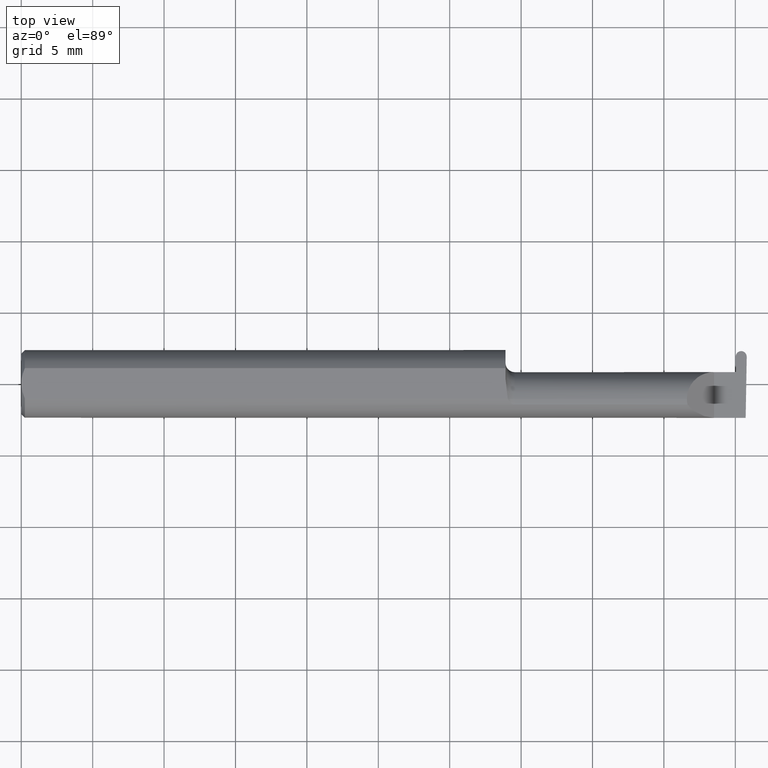
[diagram: clean part render]
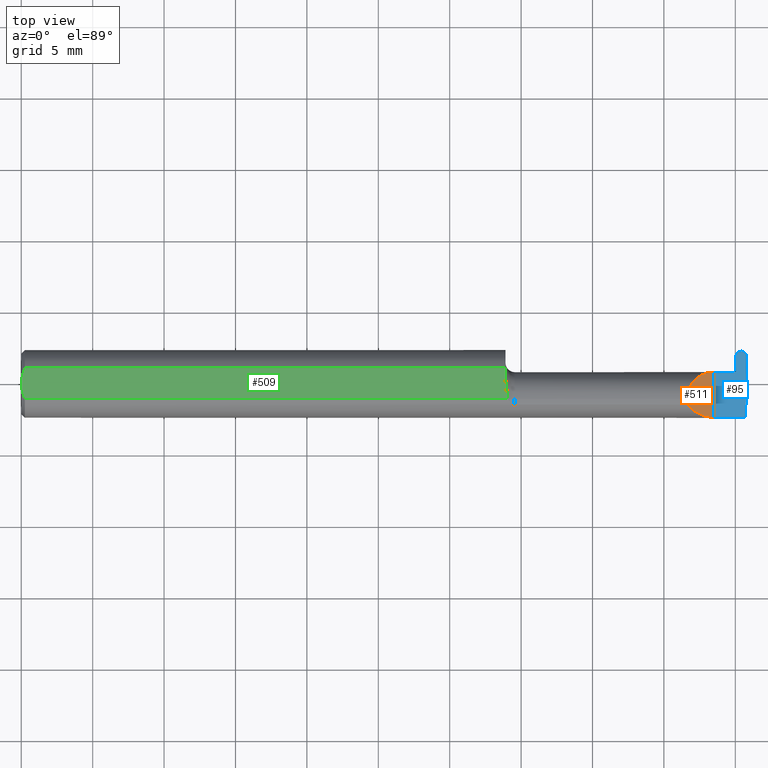
[diagram: same view with three faces highlighted in distinct colors, each labeled with its STEP entity id]
A machine part, top view with three faces highlighted in distinct colors.
Their STEP definitions:

[orange] entity #511 — the highlighted planar face has unit normal (-0.7071, 0, -0.7071).
#14 = CARTESIAN_POINT ( 'NONE',  ( 1.836620632051321200, -0.05810704225352100044, 0.07337936794867835899 ) ) ;
#28 = CARTESIAN_POINT ( 'NONE',  ( 1.910000000000000142, 0.03239999999999997743, 8.143901214329935029E-17 ) ) ;
#38 = CARTESIAN_POINT ( 'NONE',  ( 1.834999999999999298, 0.001333982822017827988, 0.07500000000000002498 ) ) ;
#49 = CARTESIAN_POINT ( 'NONE',  ( 1.836620632051321200, -0.05810704225352100044, 0.07337936794867835899 ) ) ;
#61 = PLANE ( 'NONE',  #272 ) ;
#99 = CARTESIAN_POINT ( 'NONE',  ( 1.910000000000000142, 0.03239999999999997743, 8.143901214329935029E-17 ) ) ;
#106 = CARTESIAN_POINT ( 'NONE',  ( 1.910000000000000142, -0.2500000000000000555, 1.102182119232621301E-17 ) ) ;
#117 = VERTEX_POINT ( 'NONE', #697 ) ;
#124 = EDGE_CURVE ( 'NONE', #551, #117, #291, .T. ) ;
#163 = LINE ( 'NONE', #106, #301 ) ;
#180 = CARTESIAN_POINT ( 'NONE',  ( 1.835542168554753717, -0.05300374992736055918, 0.07445783144524575903 ) ) ;
#218 = DIRECTION ( 'NONE',  ( -0.000000000000000000, 1.000000000000000000, -0.000000000000000000 ) ) ;
#244 = FACE_OUTER_BOUND ( 'NONE', #793, .T. ) ;
#272 = AXIS2_PLACEMENT_3D ( 'NONE', #621, #521, #389 ) ;
#291 =( BOUNDED_CURVE ( )  B_SPLINE_CURVE ( 3, ( #502, #500, #569, #14 ),
 .UNSPECIFIED., .F., .F. ) 
 B_SPLINE_CURVE_WITH_KNOTS ( ( 4, 4 ),
 ( 4.712388980384689674, 5.613420356061720184 ),
 .UNSPECIFIED. ) 
 CURVE ( )  GEOMETRIC_REPRESENTATION_ITEM ( )  RATIONAL_B_SPLINE_CURVE ( ( 1.000000000000000000, 0.9334817841311873199, 0.9334817841311873199, 1.000000000000000000 ) ) 
 REPRESENTATION_ITEM ( '' )  );
#299 = CARTESIAN_POINT ( 'NONE',  ( 1.834999999999999520, -0.04260000000000003367, 0.07500000000000002498 ) ) ;
#301 = VECTOR ( 'NONE', #218, 39.37007874015748143 ) ;
#309 =( BOUNDED_CURVE ( )  B_SPLINE_CURVE ( 3, ( #525, #38, #583, #28 ),
 .UNSPECIFIED., .F., .F. ) 
 B_SPLINE_CURVE_WITH_KNOTS ( ( 4, 4 ),
 ( 0.000000000000000000, 1.570796326794896114 ),
 .UNSPECIFIED. ) 
 CURVE ( )  GEOMETRIC_REPRESENTATION_ITEM ( )  RATIONAL_B_SPLINE_CURVE ( ( 1.000000000000000000, 0.8047378541243650485, 0.8047378541243650485, 1.000000000000000000 ) ) 
 REPRESENTATION_ITEM ( '' )  );
#350 = CARTESIAN_POINT ( 'NONE',  ( 1.834999999999999520, -0.04260000000000003367, 0.07500000000000002498 ) ) ;
#389 = DIRECTION ( 'NONE',  ( -0.7071067811865507924, 0.000000000000000000, 0.7071067811865441310 ) ) ;
#399 =( BOUNDED_CURVE ( )  B_SPLINE_CURVE ( 3, ( #49, #180, #530, #350 ),
 .UNSPECIFIED., .F., .T. ) 
 B_SPLINE_CURVE_WITH_KNOTS ( ( 4, 4 ),
 ( 6.074922494366331804, 6.283185307179586232 ),
 .UNSPECIFIED. ) 
 CURVE ( )  GEOMETRIC_REPRESENTATION_ITEM ( )  RATIONAL_B_SPLINE_CURVE ( ( 1.000000000000000000, 0.9963888149483995926, 0.9963888149483995926, 1.000000000000000000 ) ) 
 REPRESENTATION_ITEM ( '' )  );
#412 = VERTEX_POINT ( 'NONE', #299 ) ;
#418 = ORIENTED_EDGE ( 'NONE', *, *, #124, .F. ) ;
#429 = EDGE_CURVE ( 'NONE', #117, #412, #399, .T. ) ;
#462 = CARTESIAN_POINT ( 'NONE',  ( 1.910000000000000142, -0.09360000000000005815, 1.102182119232621301E-17 ) ) ;
#477 = ORIENTED_EDGE ( 'NONE', *, *, #576, .F. ) ;
#500 = CARTESIAN_POINT ( 'NONE',  ( 1.880893035518782730, -0.09359999999999997489, 0.02910696448121682239 ) ) ;
#502 = CARTESIAN_POINT ( 'NONE',  ( 1.910000000000000142, -0.09360000000000005815, 1.102182119232621301E-17 ) ) ;
#511 = ADVANCED_FACE ( 'NONE', ( #244 ), #61, .F. ) ;
#521 = DIRECTION ( 'NONE',  ( -0.7071067811865442421, 0.000000000000000000, -0.7071067811865509034 ) ) ;
#525 = CARTESIAN_POINT ( 'NONE',  ( 1.834999999999999520, -0.04260000000000003367, 0.07500000000000002498 ) ) ;
#530 = CARTESIAN_POINT ( 'NONE',  ( 1.834999999999999520, -0.04781600192481529760, 0.07500000000000003886 ) ) ;
#546 = EDGE_CURVE ( 'NONE', #551, #548, #163, .T. ) ;
#548 = VERTEX_POINT ( 'NONE', #99 ) ;
#551 = VERTEX_POINT ( 'NONE', #462 ) ;
#569 = CARTESIAN_POINT ( 'NONE',  ( 1.854690286057536941, -0.08092595952420821026, 0.05530971394246249340 ) ) ;
#576 = EDGE_CURVE ( 'NONE', #412, #548, #309, .T. ) ;
#583 = CARTESIAN_POINT ( 'NONE',  ( 1.866066017177981706, 0.03239999999999996355, 0.04393398282201791544 ) ) ;
#621 = CARTESIAN_POINT ( 'NONE',  ( 1.910000000000000142, -0.2500000000000000555, 1.102182119232621301E-17 ) ) ;
#670 = ORIENTED_EDGE ( 'NONE', *, *, #546, .T. ) ;
#697 = CARTESIAN_POINT ( 'NONE',  ( 1.836620632051321200, -0.05810704225352100044, 0.07337936794867835899 ) ) ;
#781 = ORIENTED_EDGE ( 'NONE', *, *, #429, .F. ) ;
#793 = EDGE_LOOP ( 'NONE', ( #781, #418, #670, #477 ) ) ;

[blue] entity #95 — the highlighted planar face has unit normal (-0, 0, -1).
#44 = CARTESIAN_POINT ( 'NONE',  ( 1.999984260029693539, 0.07409901316683065176, 0.000000000000000000 ) ) ;
#47 = VECTOR ( 'NONE', #733, 39.37007874015748143 ) ;
#53 = LINE ( 'NONE', #465, #47 ) ;
#62 = LINE ( 'NONE', #543, #504 ) ;
#67 = DIRECTION ( 'NONE',  ( 1.000000000000000000, 0.000000000000000000, 0.000000000000000000 ) ) ;
#73 = EDGE_CURVE ( 'NONE', #290, #727, #691, .T. ) ;
#75 = CARTESIAN_POINT ( 'NONE',  ( 1.969483699970306922, 0.07409901316683065176, 0.000000000000000000 ) ) ;
#76 = DIRECTION ( 'NONE',  ( -1.000000000000000000, 0.000000000000000000, 1.224646799147358877E-16 ) ) ;
#86 = EDGE_CURVE ( 'NONE', #548, #541, #744, .T. ) ;
#95 = ADVANCED_FACE ( 'NONE', ( #258 ), #315, .F. ) ;
#99 = CARTESIAN_POINT ( 'NONE',  ( 1.910000000000000142, 0.03239999999999997743, 8.143901214329935029E-17 ) ) ;
#106 = CARTESIAN_POINT ( 'NONE',  ( 1.910000000000000142, -0.2500000000000000555, 1.102182119232621301E-17 ) ) ;
#114 = ORIENTED_EDGE ( 'NONE', *, *, #375, .F. ) ;
#126 = EDGE_LOOP ( 'NONE', ( #179, #395, #768, #544, #335, #796, #357, #114, #235 ) ) ;
#141 = DIRECTION ( 'NONE',  ( -1.224646799147358877E-16, 0.000000000000000000, -1.000000000000000000 ) ) ;
#147 = CARTESIAN_POINT ( 'NONE',  ( 1.984939206054983529, 0.09039999999999999425, 0.000000000000000000 ) ) ;
#153 = DIRECTION ( 'NONE',  ( 1.000000000000000000, -0.000000000000000000, -0.000000000000000000 ) ) ;
#163 = LINE ( 'NONE', #106, #301 ) ;
#173 =( BOUNDED_CURVE ( )  B_SPLINE_CURVE ( 3, ( #44, #342, #287, #789 ),
 .UNSPECIFIED., .F., .T. ) 
 B_SPLINE_CURVE_WITH_KNOTS ( ( 4, 4 ),
 ( 1.672436806532648257, 3.247686724355375087 ),
 .UNSPECIFIED. ) 
 CURVE ( )  GEOMETRIC_REPRESENTATION_ITEM ( )  RATIONAL_B_SPLINE_CURVE ( ( 1.000000000000000000, 0.8036869647627065127, 0.8036869647627065127, 1.000000000000000000 ) ) 
 REPRESENTATION_ITEM ( '' )  );
#179 = ORIENTED_EDGE ( 'NONE', *, *, #515, .F. ) ;
#183 = VECTOR ( 'NONE', #743, 39.37007874015748143 ) ;
#218 = DIRECTION ( 'NONE',  ( -0.000000000000000000, 1.000000000000000000, -0.000000000000000000 ) ) ;
#235 = ORIENTED_EDGE ( 'NONE', *, *, #432, .T. ) ;
#246 = VERTEX_POINT ( 'NONE', #147 ) ;
#257 = EDGE_CURVE ( 'NONE', #541, #487, #458, .T. ) ;
#258 = FACE_OUTER_BOUND ( 'NONE', #126, .T. ) ;
#287 = CARTESIAN_POINT ( 'NONE',  ( 1.993910768437985759, 0.09039999999999999425, -1.125066701917155724E-18 ) ) ;
#290 = VERTEX_POINT ( 'NONE', #587 ) ;
#301 = VECTOR ( 'NONE', #218, 39.37007874015748143 ) ;
#310 = CARTESIAN_POINT ( 'NONE',  ( 1.970211558952576159, 0.03239999999999999825, 0.000000000000000000 ) ) ;
#315 = PLANE ( 'NONE',  #372 ) ;
#335 = ORIENTED_EDGE ( 'NONE', *, *, #86, .F. ) ;
#342 = CARTESIAN_POINT ( 'NONE',  ( 2.000150782537319039, 0.08363908123938845751, -1.889248031255482572E-18 ) ) ;
#357 = ORIENTED_EDGE ( 'NONE', *, *, #640, .F. ) ;
#360 = CARTESIAN_POINT ( 'NONE',  ( 1.997057062866469668, -0.09360000000000001652, 0.000000000000000000 ) ) ;
#372 = AXIS2_PLACEMENT_3D ( 'NONE', #444, #141, #76 ) ;
#375 = EDGE_CURVE ( 'NONE', #624, #417, #53, .T. ) ;
#395 = ORIENTED_EDGE ( 'NONE', *, *, #73, .T. ) ;
#417 = VERTEX_POINT ( 'NONE', #360 ) ;
#426 = CARTESIAN_POINT ( 'NONE',  ( 1.969470285088788852, 0.07486755121428030624, 0.000000000000000000 ) ) ;
#432 = EDGE_CURVE ( 'NONE', #624, #246, #173, .T. ) ;
#444 = CARTESIAN_POINT ( 'NONE',  ( 2.000000000000000000, -0.2500000000000000555, 0.000000000000000000 ) ) ;
#458 = LINE ( 'NONE', #518, #473 ) ;
#462 = CARTESIAN_POINT ( 'NONE',  ( 1.910000000000000142, -0.09360000000000005815, 1.102182119232621301E-17 ) ) ;
#465 = CARTESIAN_POINT ( 'NONE',  ( 1.999997674911211609, 0.07486755121428030624, 0.000000000000000000 ) ) ;
#473 = VECTOR ( 'NONE', #510, 39.37007874015748143 ) ;
#486 = CARTESIAN_POINT ( 'NONE',  ( 1.975557191562014481, 0.09039999999999995262, 1.819911666231880180E-17 ) ) ;
#487 = VERTEX_POINT ( 'NONE', #310 ) ;
#504 = VECTOR ( 'NONE', #795, 39.37007874015748143 ) ;
#510 = DIRECTION ( 'NONE',  ( 1.000000000000000000, 7.099522513569870101E-16, -0.000000000000000000 ) ) ;
#515 = EDGE_CURVE ( 'NONE', #290, #246, #717, .T. ) ;
#518 = CARTESIAN_POINT ( 'NONE',  ( 1.970211558952576159, 0.03239999999999999825, 0.000000000000000000 ) ) ;
#541 = VERTEX_POINT ( 'NONE', #596 ) ;
#543 = CARTESIAN_POINT ( 'NONE',  ( 2.999519565323742037E-32, -0.09359999999999998876, 2.449293598294716768E-16 ) ) ;
#544 = ORIENTED_EDGE ( 'NONE', *, *, #257, .F. ) ;
#546 = EDGE_CURVE ( 'NONE', #551, #548, #163, .T. ) ;
#548 = VERTEX_POINT ( 'NONE', #99 ) ;
#551 = VERTEX_POINT ( 'NONE', #462 ) ;
#556 = CARTESIAN_POINT ( 'NONE',  ( 1.984528753945016710, 0.09039999999999999425, 0.000000000000000000 ) ) ;
#560 = LINE ( 'NONE', #426, #183 ) ;
#587 = CARTESIAN_POINT ( 'NONE',  ( 1.984528753945016710, 0.09039999999999999425, 0.000000000000000000 ) ) ;
#596 = CARTESIAN_POINT ( 'NONE',  ( 1.964199165186739648, 0.03239999999999999825, 0.000000000000000000 ) ) ;
#608 = EDGE_CURVE ( 'NONE', #487, #727, #560, .T. ) ;
#622 = CARTESIAN_POINT ( 'NONE',  ( 1.999984260029693539, 0.07409901316683065176, 0.000000000000000000 ) ) ;
#624 = VERTEX_POINT ( 'NONE', #622 ) ;
#640 = EDGE_CURVE ( 'NONE', #417, #551, #62, .T. ) ;
#675 = CARTESIAN_POINT ( 'NONE',  ( 1.334999999999999742, 0.03239999999999997743, 8.143901214329935029E-17 ) ) ;
#691 =( BOUNDED_CURVE ( )  B_SPLINE_CURVE ( 3, ( #556, #486, #739, #808 ),
 .UNSPECIFIED., .F., .F. ) 
 B_SPLINE_CURVE_WITH_KNOTS ( ( 4, 4 ),
 ( 6.177091236414002928, 7.752341154236731313 ),
 .UNSPECIFIED. ) 
 CURVE ( )  GEOMETRIC_REPRESENTATION_ITEM ( )  RATIONAL_B_SPLINE_CURVE ( ( 1.000000000000000000, 0.8036869647627060687, 0.8036869647627060687, 1.000000000000000000 ) ) 
 REPRESENTATION_ITEM ( '' )  );
#717 = LINE ( 'NONE', #775, #731 ) ;
#727 = VERTEX_POINT ( 'NONE', #75 ) ;
#731 = VECTOR ( 'NONE', #153, 39.37007874015748143 ) ;
#733 = DIRECTION ( 'NONE',  ( -0.01745240643727633684, -0.9998476951563912696, 0.000000000000000000 ) ) ;
#739 = CARTESIAN_POINT ( 'NONE',  ( 1.969317177462680757, 0.08363908123938844363, 1.896329799165712961E-17 ) ) ;
#743 = DIRECTION ( 'NONE',  ( -0.01745240643727647215, 0.9998476951563912696, -0.000000000000000000 ) ) ;
#744 = LINE ( 'NONE', #675, #748 ) ;
#748 = VECTOR ( 'NONE', #67, 39.37007874015748143 ) ;
#768 = ORIENTED_EDGE ( 'NONE', *, *, #608, .F. ) ;
#775 = CARTESIAN_POINT ( 'NONE',  ( -3.937007874047004035E-05, 0.09039999999999999425, 0.000000000000000000 ) ) ;
#789 = CARTESIAN_POINT ( 'NONE',  ( 1.984939206054983529, 0.09039999999999999425, 0.000000000000000000 ) ) ;
#795 = DIRECTION ( 'NONE',  ( -1.000000000000000000, -0.000000000000000000, -0.000000000000000000 ) ) ;
#796 = ORIENTED_EDGE ( 'NONE', *, *, #546, .F. ) ;
#808 = CARTESIAN_POINT ( 'NONE',  ( 1.969483699970306922, 0.07409901316683065176, 0.000000000000000000 ) ) ;

[green] entity #509 — the highlighted planar face has unit normal (0, 0, 1).
#6 = CARTESIAN_POINT ( 'NONE',  ( 1.334999999999999742, 0.09360000000000005815, 0.08359999999999991049 ) ) ;
#23 = DIRECTION ( 'NONE',  ( -1.000000000000000000, -0.000000000000000000, -0.000000000000000000 ) ) ;
#54 = CARTESIAN_POINT ( 'NONE',  ( 0.009999999999999877043, 0.04209513035969864037, 0.08359999999999988274 ) ) ;
#64 = ORIENTED_EDGE ( 'NONE', *, *, #762, .F. ) ;
#66 = DIRECTION ( 'NONE',  ( 0.000000000000000000, 0.000000000000000000, 1.000000000000000000 ) ) ;
#103 = ORIENTED_EDGE ( 'NONE', *, *, #252, .T. ) ;
#127 = DIRECTION ( 'NONE',  ( 1.000000000000000000, 0.000000000000000000, -0.000000000000000000 ) ) ;
#144 = B_SPLINE_CURVE_WITH_KNOTS ( 'NONE', 3,
 ( #378, #374, #148, #702 ),
 .UNSPECIFIED., .F., .F.,
 ( 4, 4 ),
 ( 0.0006429768761302129395, 0.001744210492668866585 ),
 .UNSPECIFIED. ) ;
#148 = CARTESIAN_POINT ( 'NONE',  ( -2.417970307672167282E-16, -0.01462709520273677843, 0.08359999999999991049 ) ) ;
#185 = AXIS2_PLACEMENT_3D ( 'NONE', #625, #66, #127 ) ;
#193 = VERTEX_POINT ( 'NONE', #747 ) ;
#199 = DIRECTION ( 'NONE',  ( 1.000000000000000000, 0.000000000000000000, 0.000000000000000000 ) ) ;
#201 = CARTESIAN_POINT ( 'NONE',  ( 0.009999999999999877043, 0.04209513035969864037, 0.08359999999999988274 ) ) ;
#229 = VERTEX_POINT ( 'NONE', #373 ) ;
#233 = ORIENTED_EDGE ( 'NONE', *, *, #439, .T. ) ;
#234 = VECTOR ( 'NONE', #199, 39.37007874015748143 ) ;
#250 = PLANE ( 'NONE',  #185 ) ;
#252 = EDGE_CURVE ( 'NONE', #229, #627, #736, .T. ) ;
#282 = VERTEX_POINT ( 'NONE', #402 ) ;
#305 = CARTESIAN_POINT ( 'NONE',  ( 1.334999999999999742, 0.01227294415283365983, 0.08359999999999991049 ) ) ;
#318 = LINE ( 'NONE', #759, #234 ) ;
#366 = LINE ( 'NONE', #6, #494 ) ;
#373 = CARTESIAN_POINT ( 'NONE',  ( 1.334999999999999742, 0.04209513035969864037, 0.08359999999999988274 ) ) ;
#374 = CARTESIAN_POINT ( 'NONE',  ( 0.004072204388638606815, -0.02891446873729326336, 0.08359999999999991049 ) ) ;
#378 = CARTESIAN_POINT ( 'NONE',  ( 0.009999999999999877043, -0.04209513035969864037, 0.08359999999999988274 ) ) ;
#400 = VERTEX_POINT ( 'NONE', #406 ) ;
#402 = CARTESIAN_POINT ( 'NONE',  ( 1.334999999999999742, 0.01227294415283365983, 0.08359999999999991049 ) ) ;
#406 = CARTESIAN_POINT ( 'NONE',  ( 0.000000000000000000, 0.000000000000000000, 0.08359999999999991049 ) ) ;
#413 = ORIENTED_EDGE ( 'NONE', *, *, #694, .F. ) ;
#425 = CARTESIAN_POINT ( 'NONE',  ( 1.336463898467977085, -0.005727447913487201774, 0.08359999999999991049 ) ) ;
#437 = CARTESIAN_POINT ( 'NONE',  ( 0.004492168231814515009, 0.02859366993844193044, 0.08359999999999991049 ) ) ;
#439 = EDGE_CURVE ( 'NONE', #193, #282, #760, .T. ) ;
#441 = CARTESIAN_POINT ( 'NONE',  ( -2.524841811771306987E-16, 0.007317304829308914245, 0.08359999999999991049 ) ) ;
#469 = ORIENTED_EDGE ( 'NONE', *, *, #497, .T. ) ;
#484 = CARTESIAN_POINT ( 'NONE',  ( 1.341129652885479251, -0.04209513035970115918, 0.08359999999999991049 ) ) ;
#494 = VECTOR ( 'NONE', #628, 39.37007874015748143 ) ;
#497 = EDGE_CURVE ( 'NONE', #282, #229, #366, .T. ) ;
#498 = CARTESIAN_POINT ( 'NONE',  ( 0.000000000000000000, 0.000000000000000000, 0.08359999999999991049 ) ) ;
#509 = ADVANCED_FACE ( 'NONE', ( #742 ), #250, .T. ) ;
#568 = CARTESIAN_POINT ( 'NONE',  ( 0.009999999999999877043, -0.04209513035969864037, 0.08359999999999988274 ) ) ;
#573 = B_SPLINE_CURVE_WITH_KNOTS ( 'NONE', 3,
 ( #498, #441, #636, #437, #754, #201 ),
 .UNSPECIFIED., .F., .F.,
 ( 4, 2, 4 ),
 ( 0.001744210492668866585, 0.002295110172257195866, 0.002846009851845525147 ),
 .UNSPECIFIED. ) ;
#582 = CARTESIAN_POINT ( 'NONE',  ( 0.000000000000000000, 0.04209513035969864037, 0.08359999999999988274 ) ) ;
#595 = CARTESIAN_POINT ( 'NONE',  ( 1.339570820222979908, -0.02392027542784314065, 0.08359999999999992437 ) ) ;
#625 = CARTESIAN_POINT ( 'NONE',  ( 2.191425808082400728, 0.09360000000000005815, 0.08359999999999991049 ) ) ;
#627 = VERTEX_POINT ( 'NONE', #54 ) ;
#628 = DIRECTION ( 'NONE',  ( 0.000000000000000000, 1.000000000000000000, 0.000000000000000000 ) ) ;
#636 = CARTESIAN_POINT ( 'NONE',  ( 0.0009807498324115706059, 0.01453516766257749622, 0.08359999999999992437 ) ) ;
#661 = EDGE_CURVE ( 'NONE', #802, #193, #318, .T. ) ;
#665 = EDGE_LOOP ( 'NONE', ( #672, #233, #469, #103, #64, #413 ) ) ;
#668 = CARTESIAN_POINT ( 'NONE',  ( 1.341082007218903360, -0.03301619840524117055, 0.08359999999999991049 ) ) ;
#672 = ORIENTED_EDGE ( 'NONE', *, *, #661, .T. ) ;
#683 = CARTESIAN_POINT ( 'NONE',  ( 1.334999999999999742, 0.003280657920457313859, 0.08359999999999991049 ) ) ;
#694 = EDGE_CURVE ( 'NONE', #802, #400, #144, .T. ) ;
#702 = CARTESIAN_POINT ( 'NONE',  ( 0.000000000000000000, 0.000000000000000000, 0.08359999999999991049 ) ) ;
#736 = LINE ( 'NONE', #582, #788 ) ;
#742 = FACE_OUTER_BOUND ( 'NONE', #665, .T. ) ;
#747 = CARTESIAN_POINT ( 'NONE',  ( 1.341129652885479251, -0.04209513035970115918, 0.08359999999999991049 ) ) ;
#754 = CARTESIAN_POINT ( 'NONE',  ( 0.007036739039485552169, 0.03550621559607058941, 0.08359999999999991049 ) ) ;
#759 = CARTESIAN_POINT ( 'NONE',  ( 0.000000000000000000, -0.04209513035969864037, 0.08359999999999988274 ) ) ;
#760 = B_SPLINE_CURVE_WITH_KNOTS ( 'NONE', 3,
 ( #484, #668, #595, #425, #683, #305 ),
 .UNSPECIFIED., .F., .F.,
 ( 4, 2, 4 ),
 ( 0.009672910729349518122, 0.01035804079918428711, 0.01104317086901905436 ),
 .UNSPECIFIED. ) ;
#762 = EDGE_CURVE ( 'NONE', #400, #627, #573, .T. ) ;
#788 = VECTOR ( 'NONE', #23, 39.37007874015748143 ) ;
#802 = VERTEX_POINT ( 'NONE', #568 ) ;